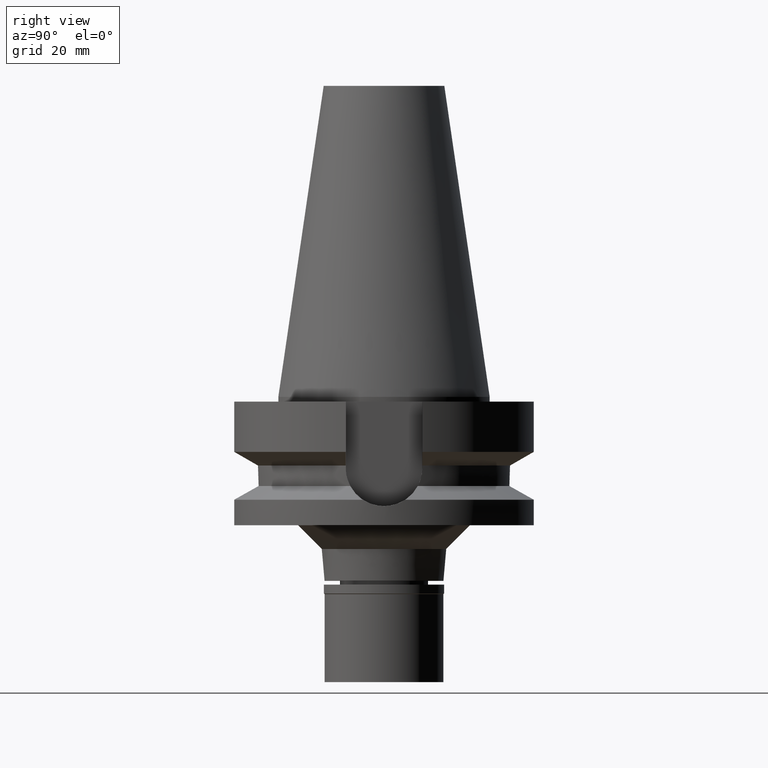
[diagram: clean part render]
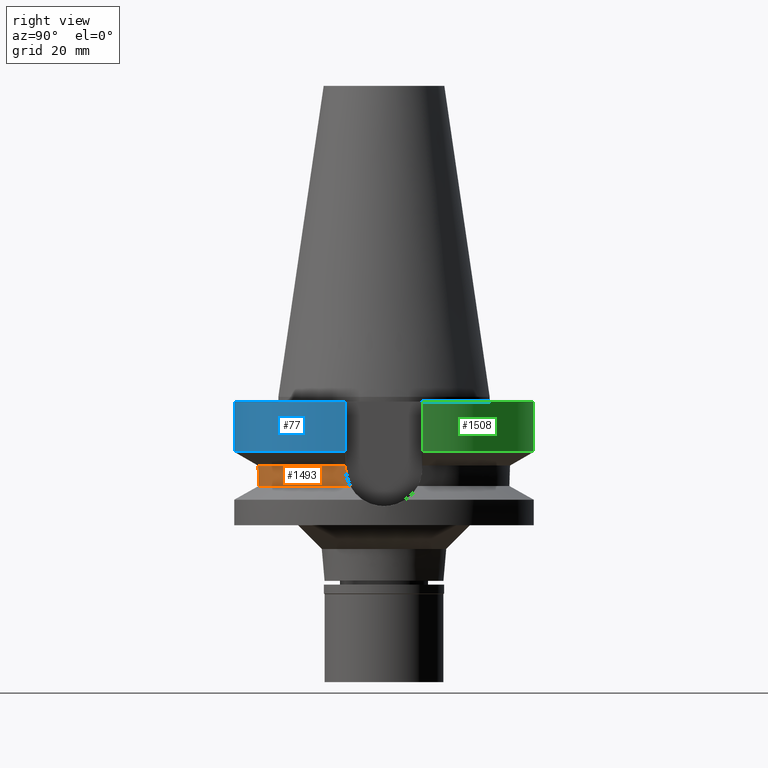
[diagram: same view with three faces highlighted in distinct colors, each labeled with its STEP entity id]
A machine part, right view with three faces highlighted in distinct colors.
Their STEP definitions:

[orange] entity #1493 — the highlighted cylindrical surface (partial cylindrical patch) has radius 26.5 mm, axis along (0, 0, -1).
#19 = VERTEX_POINT ( 'NONE', #1332 ) ;
#22 = CARTESIAN_POINT ( 'NONE',  ( -25.44389776528931790, -7.408340107180626966, -18.11686868423986496 ) ) ;
#111 = LINE ( 'NONE', #1814, #443 ) ;
#190 = AXIS2_PLACEMENT_3D ( 'NONE', #2847, #782, #479 ) ;
#198 = AXIS2_PLACEMENT_3D ( 'NONE', #518, #254, #1041 ) ;
#254 = DIRECTION ( 'NONE',  ( 0.0000000000000000000, 0.0000000000000000000, 1.000000000000000000 ) ) ;
#272 = CARTESIAN_POINT ( 'NONE',  ( -25.27267878703948156, -7.973310748591815766, -16.24511349492755485 ) ) ;
#299 = B_SPLINE_CURVE_WITH_KNOTS ( 'NONE', 3,
 ( #1640, #2370, #22, #2614, #2152, #1027, #1941, #2593, #2427, #1185, #496, #272, #979, #964 ),
 .UNSPECIFIED., .F., .F.,
 ( 4, 2, 2, 1, 1, 2, 2, 4 ),
 ( 0.0000000000000000000, 0.2500000000000133782, 0.3750000000000213163, 0.4375000000000240363, 0.4687500000000240918, 0.4843750000000253686, 0.5000000000000266454, 1.000000000000000000 ),
 .UNSPECIFIED. ) ;
#314 = B_SPLINE_CURVE_WITH_KNOTS ( 'NONE', 3,
 ( #1296, #2204, #1486, #1502, #1752, #346, #605, #2915, #851, #2712, #2004, #1766, #2246, #2489 ),
 .UNSPECIFIED., .F., .F.,
 ( 4, 2, 2, 1, 1, 2, 2, 4 ),
 ( 0.0000000000000000000, 0.2500000000000033862, 0.3750000000000043299, 0.4375000000000048295, 0.4687500000000036637, 0.4843750000000031641, 0.5000000000000026645, 1.000000000000000000 ),
 .UNSPECIFIED. ) ;
#315 = ORIENTED_EDGE ( 'NONE', *, *, #2484, .F. ) ;
#324 = CARTESIAN_POINT ( 'NONE',  ( -25.24772266958000344, -8.050000000000000711, -14.94999999999999929 ) ) ;
#346 = CARTESIAN_POINT ( 'NONE',  ( 25.29453118987922267, -7.902064242066239252, -16.48842005630119445 ) ) ;
#389 = EDGE_CURVE ( 'NONE', #1742, #787, #314, .T. ) ;
#443 = VECTOR ( 'NONE', #1295, 1000.000000000000000 ) ;
#479 = DIRECTION ( 'NONE',  ( 0.0000000000000000000, -1.000000000000000000, 0.0000000000000000000 ) ) ;
#496 = CARTESIAN_POINT ( 'NONE',  ( -25.32415077929965719, -7.806445795312512814, -16.91528421260400705 ) ) ;
#499 = CARTESIAN_POINT ( 'NONE',  ( 25.53175183775000079, -7.097862220092999941, -18.74774300138999905 ) ) ;
#518 = CARTESIAN_POINT ( 'NONE',  ( 0.0000000000000000000, 0.0000000000000000000, -18.74774300138999905 ) ) ;
#520 = DIRECTION ( 'NONE',  ( 0.0000000000000000000, 0.0000000000000000000, -1.000000000000000000 ) ) ;
#605 = CARTESIAN_POINT ( 'NONE',  ( 25.30213757442784583, -7.877637162976262708, -16.61056528398788146 ) ) ;
#607 = CARTESIAN_POINT ( 'NONE',  ( 25.24772266958000344, -8.050000000000000711, -14.94999999999999929 ) ) ;
#723 = ORIENTED_EDGE ( 'NONE', *, *, #2691, .F. ) ;
#782 = DIRECTION ( 'NONE',  ( 0.0000000000000000000, 0.0000000000000000000, -1.000000000000000000 ) ) ;
#787 = VERTEX_POINT ( 'NONE', #499 ) ;
#851 = CARTESIAN_POINT ( 'NONE',  ( 25.31649706320713733, -7.831262302060541636, -16.81393877535621328 ) ) ;
#964 = CARTESIAN_POINT ( 'NONE',  ( -25.24772266958000344, -8.050000000000000711, -14.94999999999999929 ) ) ;
#979 = CARTESIAN_POINT ( 'NONE',  ( -25.24772266957999634, -8.049999999999979394, -15.58990582806755398 ) ) ;
#1027 = CARTESIAN_POINT ( 'NONE',  ( -25.35407699156156625, -7.708962562370444083, -17.26964265290226308 ) ) ;
#1035 = AXIS2_PLACEMENT_3D ( 'NONE', #2406, #520, #2366 ) ;
#1041 = DIRECTION ( 'NONE',  ( -0.9634623335000935818, -0.2678438573619981722, 0.0000000000000000000 ) ) ;
#1087 = CIRCLE ( 'NONE', #198, 26.49999999999998224 ) ;
#1130 = LINE ( 'NONE', #1664, #2662 ) ;
#1185 = CARTESIAN_POINT ( 'NONE',  ( -25.32546100062935679, -7.802196480338490225, -16.93206928540818268 ) ) ;
#1295 = DIRECTION ( 'NONE',  ( -2.969667548629043660E-06, 9.313961588336145124E-06, 0.9999999999522155569 ) ) ;
#1296 = CARTESIAN_POINT ( 'NONE',  ( 25.24772266958000344, -8.050000000000000711, -14.94999999999999929 ) ) ;
#1332 = CARTESIAN_POINT ( 'NONE',  ( -25.53175183775000079, -7.097862220092999941, -18.74774300138999905 ) ) ;
#1333 = VERTEX_POINT ( 'NONE', #2569 ) ;
#1337 = ORIENTED_EDGE ( 'NONE', *, *, #1453, .F. ) ;
#1351 = ORIENTED_EDGE ( 'NONE', *, *, #389, .F. ) ;
#1387 = EDGE_LOOP ( 'NONE', ( #1337, #2423, #1351, #723, #2689, #315 ) ) ;
#1398 = DIRECTION ( 'NONE',  ( 9.912958033143765544E-07, 3.109065427259926103E-06, -0.9999999999946754814 ) ) ;
#1453 = EDGE_CURVE ( 'NONE', #19, #1698, #299, .T. ) ;
#1466 = CYLINDRICAL_SURFACE ( 'NONE', #190, 26.50000000000000000 ) ;
#1486 = CARTESIAN_POINT ( 'NONE',  ( 25.25396380561988607, -8.030903546329694720, -15.59366754601816574 ) ) ;
#1493 = ADVANCED_FACE ( 'NONE', ( #1977 ), #1466, .T. ) ;
#1502 = CARTESIAN_POINT ( 'NONE',  ( 25.27268721373958726, -7.971796898703089163, -16.08126439256691498 ) ) ;
#1640 = CARTESIAN_POINT ( 'NONE',  ( -25.53175183775000079, -7.097862220092999941, -18.74774300138999905 ) ) ;
#1664 = CARTESIAN_POINT ( 'NONE',  ( 25.24772217615999992, -8.050001547552001924, -14.45224517393999797 ) ) ;
#1698 = VERTEX_POINT ( 'NONE', #324 ) ;
#1742 = VERTEX_POINT ( 'NONE', #607 ) ;
#1752 = CARTESIAN_POINT ( 'NONE',  ( 25.28048863378946010, -7.947021833655625755, -16.24412758137958335 ) ) ;
#1766 = CARTESIAN_POINT ( 'NONE',  ( 25.36815874783960467, -7.663791245765212423, -17.48814129335194067 ) ) ;
#1814 = CARTESIAN_POINT ( 'NONE',  ( -25.24772266958000344, -8.050000000000000711, -14.94999999999999929 ) ) ;
#1921 = CIRCLE ( 'NONE', #1035, 26.50000000000000711 ) ;
#1941 = CARTESIAN_POINT ( 'NONE',  ( -25.34383784690743369, -7.742464100972826557, -17.15621186860311198 ) ) ;
#1977 = FACE_OUTER_BOUND ( 'NONE', #1387, .T. ) ;
#2004 = CARTESIAN_POINT ( 'NONE',  ( 25.32119310062810058, -7.816055872880485644, -16.87669021872437369 ) ) ;
#2053 = VERTEX_POINT ( 'NONE', #2772 ) ;
#2152 = CARTESIAN_POINT ( 'NONE',  ( -25.37568864340297736, -7.637841086871763885, -17.49779646605935213 ) ) ;
#2204 = CARTESIAN_POINT ( 'NONE',  ( 25.24772266958000344, -8.050000000000000711, -15.26994624097755349 ) ) ;
#2222 = EDGE_CURVE ( 'NONE', #1333, #2053, #1921, .T. ) ;
#2246 = CARTESIAN_POINT ( 'NONE',  ( 25.43787059307001641, -7.435562863904584319, -18.11659111971998115 ) ) ;
#2366 = DIRECTION ( 'NONE',  ( 0.9527442516822307583, -0.3037735849057093818, 0.0000000000000000000 ) ) ;
#2370 = CARTESIAN_POINT ( 'NONE',  ( -25.48480250143130021, -7.266743887086228426, -18.43210847757043425 ) ) ;
#2406 = CARTESIAN_POINT ( 'NONE',  ( 0.0000000000000000000, 1.065333950388000029E-14, -14.45225699861000024 ) ) ;
#2423 = ORIENTED_EDGE ( 'NONE', *, *, #2786, .T. ) ;
#2427 = CARTESIAN_POINT ( 'NONE',  ( -25.32840181445860139, -7.792653841590092334, -16.96926092299040079 ) ) ;
#2484 = EDGE_CURVE ( 'NONE', #1698, #2053, #111, .T. ) ;
#2489 = CARTESIAN_POINT ( 'NONE',  ( 25.53175183775000079, -7.097862220092999941, -18.74774300138999905 ) ) ;
#2569 = CARTESIAN_POINT ( 'NONE',  ( 25.24772266958000344, -8.050000000000000711, -14.45225699861000024 ) ) ;
#2593 = CARTESIAN_POINT ( 'NONE',  ( -25.33288387036077083, -7.778102131032761157, -17.02514599129927575 ) ) ;
#2614 = CARTESIAN_POINT ( 'NONE',  ( -25.39160756134142360, -7.584934398583156323, -17.65162641216541317 ) ) ;
#2662 = VECTOR ( 'NONE', #1398, 1000.000000000000227 ) ;
#2689 = ORIENTED_EDGE ( 'NONE', *, *, #2222, .T. ) ;
#2691 = EDGE_CURVE ( 'NONE', #1333, #1742, #1130, .T. ) ;
#2712 = CARTESIAN_POINT ( 'NONE',  ( 25.31952011347645737, -7.821476031042577048, -16.85458648997031617 ) ) ;
#2772 = CARTESIAN_POINT ( 'NONE',  ( -25.24772414761000050, -8.049995364371000051, -14.45229242090000099 ) ) ;
#2786 = EDGE_CURVE ( 'NONE', #19, #787, #1087, .T. ) ;
#2847 = CARTESIAN_POINT ( 'NONE',  ( 0.0000000000000000000, 2.098554755019000113E-14, 71.36000000000001364 ) ) ;
#2915 = CARTESIAN_POINT ( 'NONE',  ( 25.31203562611612057, -7.845693926034295274, -16.75295273484678660 ) ) ;

[blue] entity #77 — the highlighted cylindrical surface (partial cylindrical patch) has radius 31.5 mm, axis along (0, 0, -1).
#24 = CIRCLE ( 'NONE', #2068, 31.50000000000000000 ) ;
#73 = DIRECTION ( 'NONE',  ( -1.045071825970016284E-07, -3.953614603005065540E-07, -0.9999999999999162892 ) ) ;
#77 = ADVANCED_FACE ( 'NONE', ( #863 ), #619, .T. ) ;
#132 = AXIS2_PLACEMENT_3D ( 'NONE', #2440, #1976, #1060 ) ;
#216 = DIRECTION ( 'NONE',  ( 1.854076638886989976E-08, -7.014196411362962419E-08, 0.9999999999999973355 ) ) ;
#253 = ORIENTED_EDGE ( 'NONE', *, *, #1011, .T. ) ;
#288 = CARTESIAN_POINT ( 'NONE',  ( -30.45402272279000044, -8.050000000000000711, -1.000000000000000000 ) ) ;
#309 = EDGE_LOOP ( 'NONE', ( #2743, #253, #2170, #497 ) ) ;
#451 = CARTESIAN_POINT ( 'NONE',  ( -30.45402291867999622, -8.049999258913999256, -11.56551232747000135 ) ) ;
#452 = EDGE_CURVE ( 'NONE', #625, #2268, #473, .T. ) ;
#473 = CIRCLE ( 'NONE', #132, 31.50000000000000000 ) ;
#497 = ORIENTED_EDGE ( 'NONE', *, *, #452, .T. ) ;
#535 = EDGE_CURVE ( 'NONE', #625, #1441, #2426, .T. ) ;
#619 = CYLINDRICAL_SURFACE ( 'NONE', #1511, 31.50000000000000000 ) ;
#625 = VERTEX_POINT ( 'NONE', #2337 ) ;
#863 = FACE_OUTER_BOUND ( 'NONE', #309, .T. ) ;
#1011 = EDGE_CURVE ( 'NONE', #2619, #1441, #24, .T. ) ;
#1060 = DIRECTION ( 'NONE',  ( 0.0000000000000000000, -1.000000000000000000, 0.0000000000000000000 ) ) ;
#1072 = CARTESIAN_POINT ( 'NONE',  ( -30.45402291867999622, -8.049999258913999256, -11.56551232747000135 ) ) ;
#1114 = DIRECTION ( 'NONE',  ( 0.0000000000000000000, 0.0000000000000000000, -1.000000000000000000 ) ) ;
#1247 = CARTESIAN_POINT ( 'NONE',  ( 30.45402272279000044, -8.050000000000000711, -1.000000000000000000 ) ) ;
#1317 = EDGE_CURVE ( 'NONE', #2619, #2268, #1630, .T. ) ;
#1441 = VERTEX_POINT ( 'NONE', #2308 ) ;
#1511 = AXIS2_PLACEMENT_3D ( 'NONE', #1563, #1114, #2537 ) ;
#1563 = CARTESIAN_POINT ( 'NONE',  ( 0.0000000000000000000, 2.098554755019000113E-14, 71.36000000000001364 ) ) ;
#1630 = LINE ( 'NONE', #451, #2112 ) ;
#1976 = DIRECTION ( 'NONE',  ( 0.0000000000000000000, 0.0000000000000000000, -1.000000000000000000 ) ) ;
#2027 = DIRECTION ( 'NONE',  ( 0.0000000000000000000, -1.000000000000000000, 0.0000000000000000000 ) ) ;
#2068 = AXIS2_PLACEMENT_3D ( 'NONE', #2718, #2696, #2027 ) ;
#2112 = VECTOR ( 'NONE', #216, 1000.000000000000000 ) ;
#2170 = ORIENTED_EDGE ( 'NONE', *, *, #535, .F. ) ;
#2268 = VERTEX_POINT ( 'NONE', #288 ) ;
#2305 = VECTOR ( 'NONE', #73, 1000.000000000000227 ) ;
#2308 = CARTESIAN_POINT ( 'NONE',  ( 30.45402272279000044, -8.049999999999000622, -11.56550565266999975 ) ) ;
#2337 = CARTESIAN_POINT ( 'NONE',  ( 30.45402272279000044, -8.050000000000000711, -1.000000000000000000 ) ) ;
#2426 = LINE ( 'NONE', #1247, #2305 ) ;
#2440 = CARTESIAN_POINT ( 'NONE',  ( 0.0000000000000000000, 2.098554755019000113E-14, -1.000000000000000000 ) ) ;
#2537 = DIRECTION ( 'NONE',  ( 0.0000000000000000000, -1.000000000000000000, 0.0000000000000000000 ) ) ;
#2619 = VERTEX_POINT ( 'NONE', #1072 ) ;
#2696 = DIRECTION ( 'NONE',  ( 0.0000000000000000000, 0.0000000000000000000, 1.000000000000000000 ) ) ;
#2718 = CARTESIAN_POINT ( 'NONE',  ( 0.0000000000000000000, 1.065333950388000029E-14, -11.56550565266999975 ) ) ;
#2743 = ORIENTED_EDGE ( 'NONE', *, *, #1317, .F. ) ;

[green] entity #1508 — the highlighted cylindrical surface (partial cylindrical patch) has radius 31.5 mm, axis along (0, 0, -1).
#16 = CARTESIAN_POINT ( 'NONE',  ( 0.0000000000000000000, 1.065333950388000029E-14, -11.56550565266999975 ) ) ;
#83 = VECTOR ( 'NONE', #1768, 1000.000000000000114 ) ;
#95 = AXIS2_PLACEMENT_3D ( 'NONE', #16, #2434, #1746 ) ;
#126 = LINE ( 'NONE', #1537, #83 ) ;
#249 = EDGE_CURVE ( 'NONE', #698, #1239, #1681, .T. ) ;
#505 = DIRECTION ( 'NONE',  ( -1.854442081343990052E-08, 7.015579329281962061E-08, 0.9999999999999973355 ) ) ;
#524 = FACE_OUTER_BOUND ( 'NONE', #1250, .T. ) ;
#547 = CYLINDRICAL_SURFACE ( 'NONE', #978, 31.50000000000000000 ) ;
#557 = CARTESIAN_POINT ( 'NONE',  ( -30.45402272279000044, 8.050000000000000711, -1.000000000000000000 ) ) ;
#566 = VERTEX_POINT ( 'NONE', #3055 ) ;
#664 = ORIENTED_EDGE ( 'NONE', *, *, #1781, .F. ) ;
#694 = ORIENTED_EDGE ( 'NONE', *, *, #3042, .T. ) ;
#698 = VERTEX_POINT ( 'NONE', #2276 ) ;
#763 = DIRECTION ( 'NONE',  ( 0.0000000000000000000, -1.000000000000000000, 0.0000000000000000000 ) ) ;
#854 = CARTESIAN_POINT ( 'NONE',  ( 30.45402272279000044, 8.050000000000000711, -1.000000000000000000 ) ) ;
#977 = CIRCLE ( 'NONE', #1914, 31.50000000000000000 ) ;
#978 = AXIS2_PLACEMENT_3D ( 'NONE', #1487, #2865, #763 ) ;
#1202 = VECTOR ( 'NONE', #505, 1000.000000000000000 ) ;
#1239 = VERTEX_POINT ( 'NONE', #854 ) ;
#1250 = EDGE_LOOP ( 'NONE', ( #664, #694, #2478, #2948 ) ) ;
#1425 = CIRCLE ( 'NONE', #95, 31.50000000000000000 ) ;
#1487 = CARTESIAN_POINT ( 'NONE',  ( 0.0000000000000000000, 2.098554755019000113E-14, 71.36000000000001364 ) ) ;
#1508 = ADVANCED_FACE ( 'NONE', ( #524 ), #547, .T. ) ;
#1537 = CARTESIAN_POINT ( 'NONE',  ( -30.45402272279000044, 8.050000000000000711, -1.000000000000000000 ) ) ;
#1681 = LINE ( 'NONE', #2621, #1202 ) ;
#1746 = DIRECTION ( 'NONE',  ( 0.0000000000000000000, 1.000000000000000000, 0.0000000000000000000 ) ) ;
#1768 = DIRECTION ( 'NONE',  ( 1.044425130644016334E-07, 3.951168091851066882E-07, -0.9999999999999164002 ) ) ;
#1780 = DIRECTION ( 'NONE',  ( 0.0000000000000000000, 1.000000000000000000, 0.0000000000000000000 ) ) ;
#1781 = EDGE_CURVE ( 'NONE', #2412, #566, #126, .T. ) ;
#1914 = AXIS2_PLACEMENT_3D ( 'NONE', #2253, #2274, #1780 ) ;
#2253 = CARTESIAN_POINT ( 'NONE',  ( 0.0000000000000000000, 2.098554755019000113E-14, -1.000000000000000000 ) ) ;
#2274 = DIRECTION ( 'NONE',  ( 0.0000000000000000000, 0.0000000000000000000, -1.000000000000000000 ) ) ;
#2276 = CARTESIAN_POINT ( 'NONE',  ( 30.45402291871999978, 8.049999258768000487, -11.56551232878000057 ) ) ;
#2412 = VERTEX_POINT ( 'NONE', #557 ) ;
#2434 = DIRECTION ( 'NONE',  ( 0.0000000000000000000, 0.0000000000000000000, 1.000000000000000000 ) ) ;
#2478 = ORIENTED_EDGE ( 'NONE', *, *, #249, .F. ) ;
#2621 = CARTESIAN_POINT ( 'NONE',  ( 30.45402291871999978, 8.049999258768000487, -11.56551232878000057 ) ) ;
#2832 = EDGE_CURVE ( 'NONE', #698, #566, #1425, .T. ) ;
#2865 = DIRECTION ( 'NONE',  ( 0.0000000000000000000, 0.0000000000000000000, -1.000000000000000000 ) ) ;
#2948 = ORIENTED_EDGE ( 'NONE', *, *, #2832, .T. ) ;
#3042 = EDGE_CURVE ( 'NONE', #2412, #1239, #977, .T. ) ;
#3055 = CARTESIAN_POINT ( 'NONE',  ( -30.45402161929999707, 8.050004174594000972, -11.56546804972000153 ) ) ;